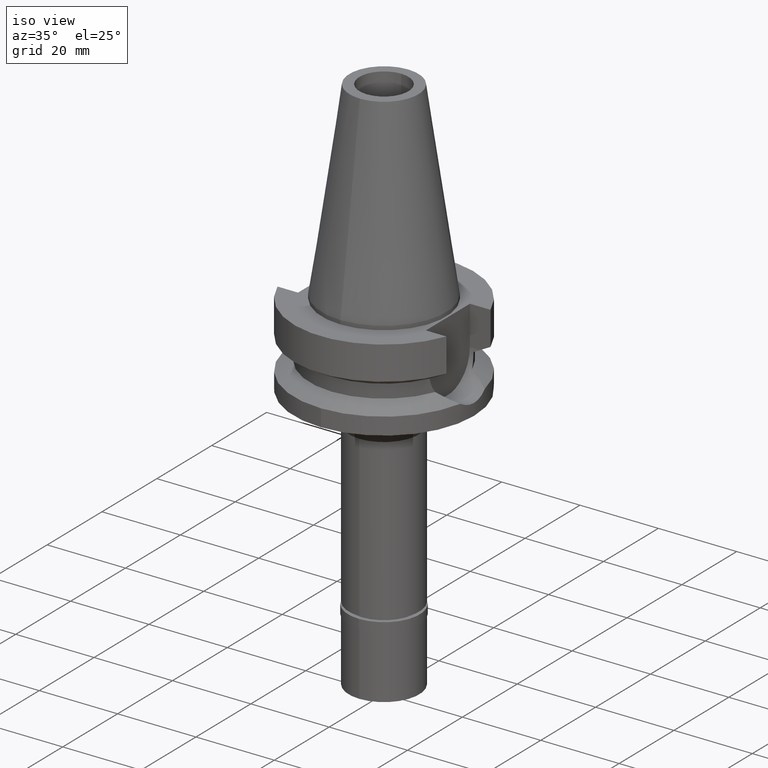
[diagram: clean part render]
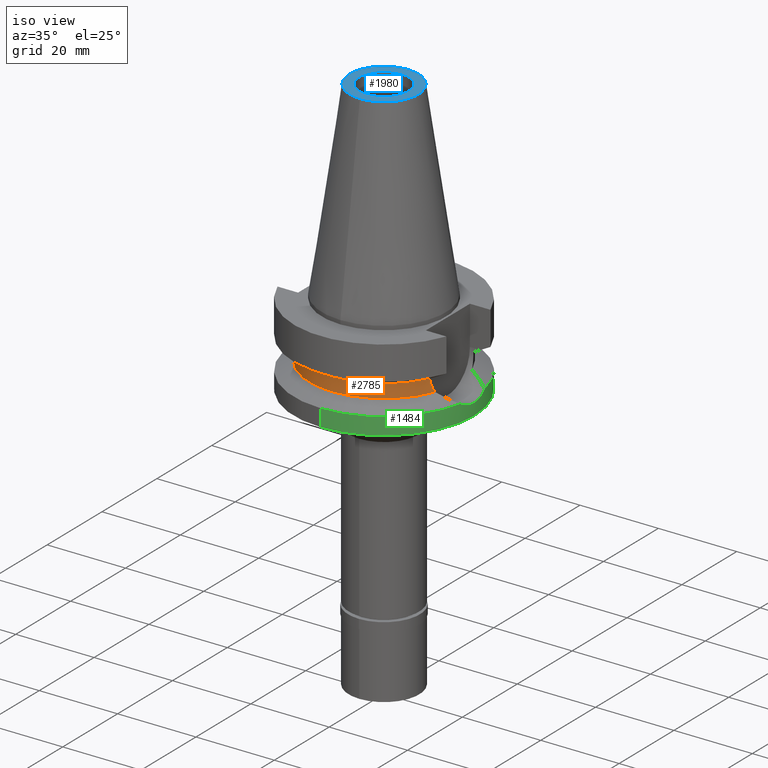
[diagram: same view with three faces highlighted in distinct colors, each labeled with its STEP entity id]
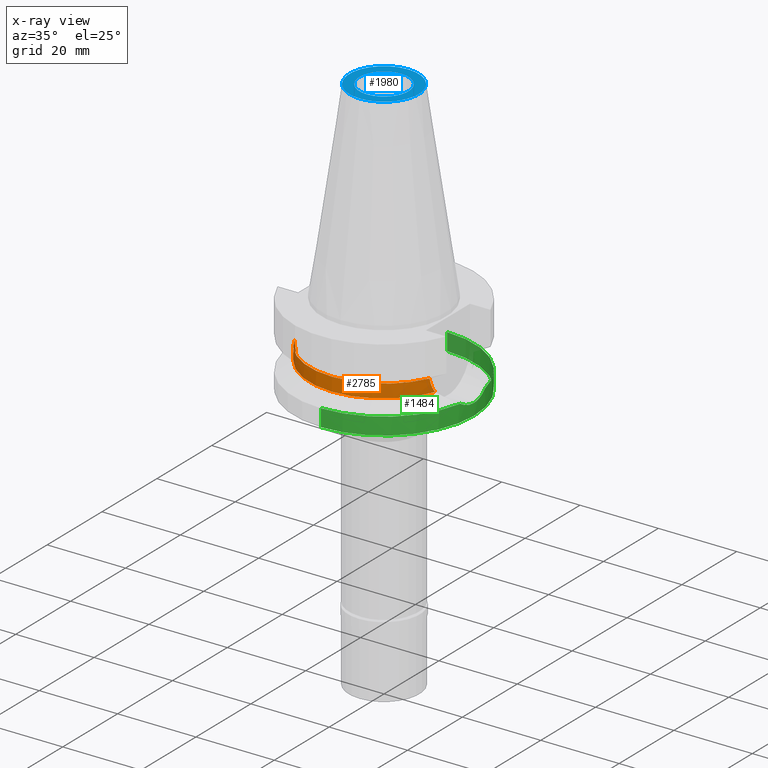
[diagram: x-ray of the same camera — body ghosted, the three highlighted faces saturated]
A machine part, iso view with three faces highlighted in distinct colors.
The next image is the same camera in x-ray (body ghosted, the three faces saturated) — at least one of them is partly hidden behind the body in this view.
Their STEP definitions:

[orange] entity #2785 — the highlighted cylindrical surface (partial cylindrical patch) has radius 19.0018 mm, axis along (0, 0, -1).
#17 = VERTEX_POINT ( 'NONE', #1783 ) ;
#24 = CARTESIAN_POINT ( 'NONE',  ( -17.26825608798807110, -7.929744833635926859, -12.45263463295230189 ) ) ;
#35 = CARTESIAN_POINT ( 'NONE',  ( 17.33949830114529433, -7.772922946167431846, -13.04957045330956156 ) ) ;
#82 = CARTESIAN_POINT ( 'NONE',  ( 17.50281428987996435, -7.400176627240894867, -14.16641912268912762 ) ) ;
#88 = CARTESIAN_POINT ( 'NONE',  ( -17.51269496040693951, -7.374794055766867196, -14.18057197121118129 ) ) ;
#156 = CARTESIAN_POINT ( 'NONE',  ( -17.45916774024316354, -7.500111073790702854, -13.87569767890726347 ) ) ;
#159 = CARTESIAN_POINT ( 'NONE',  ( 17.75928303705000033, -6.758398853744999712, -15.32339055352999857 ) ) ;
#222 = B_SPLINE_CURVE_WITH_KNOTS ( 'NONE', 3,
 ( #2403, #1944, #2428, #247, #88, #1270, #156, #810, #1700, #1286, #1938, #2651, #1372, #24, #897 ),
 .UNSPECIFIED., .F., .F.,
 ( 4, 2, 2, 1, 1, 1, 2, 2, 4 ),
 ( 0.0000000000000000000, 0.2500000000000176525, 0.3750000000000257017, 0.4375000000000299760, 0.4687500000000319744, 0.4843750000000328626, 0.4921875000000328071, 0.5000000000000327516, 1.000000000000000000 ),
 .UNSPECIFIED. ) ;
#247 = CARTESIAN_POINT ( 'NONE',  ( -17.53880179780772153, -7.312723605806137783, -14.31912348460849493 ) ) ;
#267 = CARTESIAN_POINT ( 'NONE',  ( 17.40246475582207708, -7.630563837976088060, -13.51509474752734974 ) ) ;
#292 = CARTESIAN_POINT ( 'NONE',  ( 17.38352545387158088, -7.673723835462215703, -13.38458801244068752 ) ) ;
#312 = VERTEX_POINT ( 'NONE', #159 ) ;
#326 = CARTESIAN_POINT ( 'NONE',  ( 0.0000000000000000000, 1.093341284896999988E-14, -11.87660944646999894 ) ) ;
#513 = B_SPLINE_CURVE_WITH_KNOTS ( 'NONE', 3,
 ( #2269, #1395, #909, #1417, #35, #2294, #292, #267, #952, #2087, #2729, #2078, #82, #1139, #1849 ),
 .UNSPECIFIED., .F., .F.,
 ( 4, 2, 2, 1, 1, 1, 2, 2, 4 ),
 ( 0.0000000000000000000, 0.2499999999999925615, 0.3749999999999881761, 0.4374999999999854561, 0.4687499999999841793, 0.4843749999999832911, 0.4921874999999835132, 0.4999999999999837352, 1.000000000000000000 ),
 .UNSPECIFIED. ) ;
#534 = EDGE_LOOP ( 'NONE', ( #2016, #1729, #2765, #2355 ) ) ;
#546 = CARTESIAN_POINT ( 'NONE',  ( 0.0000000000000000000, 1.899304720797999717E-14, 55.09000000000000341 ) ) ;
#601 = EDGE_CURVE ( 'NONE', #17, #312, #1969, .T. ) ;
#629 = AXIS2_PLACEMENT_3D ( 'NONE', #546, #772, #1258 ) ;
#637 = CARTESIAN_POINT ( 'NONE',  ( 17.23728651733000206, -7.996501750019998411, -11.87660739320999959 ) ) ;
#702 = AXIS2_PLACEMENT_3D ( 'NONE', #1435, #760, #1929 ) ;
#760 = DIRECTION ( 'NONE',  ( 0.0000000000000000000, 0.0000000000000000000, 1.000000000000000000 ) ) ;
#761 = DIRECTION ( 'NONE',  ( 0.0000000000000000000, 0.0000000000000000000, -1.000000000000000000 ) ) ;
#772 = DIRECTION ( 'NONE',  ( 0.0000000000000000000, 0.0000000000000000000, -1.000000000000000000 ) ) ;
#810 = CARTESIAN_POINT ( 'NONE',  ( -17.44023413050847182, -7.543863766573640994, -13.75976389724798743 ) ) ;
#897 = CARTESIAN_POINT ( 'NONE',  ( -17.23729139295999957, -7.996491146611000467, -11.87660607773000088 ) ) ;
#909 = CARTESIAN_POINT ( 'NONE',  ( 17.27592865075187234, -7.913379398881408733, -12.45762904854303521 ) ) ;
#952 = CARTESIAN_POINT ( 'NONE',  ( 17.41224899685526850, -7.608177767614096254, -13.58036371506877948 ) ) ;
#995 = EDGE_CURVE ( 'NONE', #2391, #312, #513, .T. ) ;
#1002 = FACE_OUTER_BOUND ( 'NONE', #534, .T. ) ;
#1122 = EDGE_CURVE ( 'NONE', #17, #1846, #222, .T. ) ;
#1139 = CARTESIAN_POINT ( 'NONE',  ( 17.61516098069872527, -7.137113464379599037, -14.73814568251177803 ) ) ;
#1160 = AXIS2_PLACEMENT_3D ( 'NONE', #326, #761, #1897 ) ;
#1258 = DIRECTION ( 'NONE',  ( 0.0000000000000000000, -1.000000000000000000, 0.0000000000000000000 ) ) ;
#1270 = CARTESIAN_POINT ( 'NONE',  ( -17.47651365515604382, -7.459704488211568396, -13.97666972183840350 ) ) ;
#1286 = CARTESIAN_POINT ( 'NONE',  ( -17.42724540378602427, -7.573766977290222080, -13.67775164290351420 ) ) ;
#1372 = CARTESIAN_POINT ( 'NONE',  ( -17.32988208414754894, -7.797407153364577681, -13.04852562439563890 ) ) ;
#1395 = CARTESIAN_POINT ( 'NONE',  ( 17.25277258142993375, -7.963111049225214622, -12.16468846146518423 ) ) ;
#1417 = CARTESIAN_POINT ( 'NONE',  ( 17.32216776256780832, -7.811451360816643152, -12.90108491672162572 ) ) ;
#1435 = CARTESIAN_POINT ( 'NONE',  ( 0.0000000000000000000, 1.022848384030000006E-14, -15.32339055352999857 ) ) ;
#1700 = CARTESIAN_POINT ( 'NONE',  ( -17.43109314839036372, -7.564917561253388989, -13.70228136683628151 ) ) ;
#1729 = ORIENTED_EDGE ( 'NONE', *, *, #601, .T. ) ;
#1783 = CARTESIAN_POINT ( 'NONE',  ( -17.75928303705000033, -6.758398853744999712, -15.32339055352999857 ) ) ;
#1846 = VERTEX_POINT ( 'NONE', #2607 ) ;
#1849 = CARTESIAN_POINT ( 'NONE',  ( 17.75928303705000033, -6.758398853744999712, -15.32339055352999857 ) ) ;
#1897 = DIRECTION ( 'NONE',  ( 0.0000000000000000000, -1.000000000000000000, 0.0000000000000000000 ) ) ;
#1929 = DIRECTION ( 'NONE',  ( 0.0000000000000000000, -1.000000000000000000, 0.0000000000000000000 ) ) ;
#1938 = CARTESIAN_POINT ( 'NONE',  ( -17.42469575608546606, -7.579628292599207562, -13.66142217252943247 ) ) ;
#1944 = CARTESIAN_POINT ( 'NONE',  ( -17.68720968991326004, -6.947788530045807320, -15.03071809367088107 ) ) ;
#1969 = CIRCLE ( 'NONE', #702, 19.00179173279000011 ) ;
#2016 = ORIENTED_EDGE ( 'NONE', *, *, #1122, .F. ) ;
#2078 = CARTESIAN_POINT ( 'NONE',  ( 17.42098403763615622, -7.588143148054242282, -13.63750035187326226 ) ) ;
#2087 = CARTESIAN_POINT ( 'NONE',  ( 17.41650965516762639, -7.598410173944073698, -13.60833792212287463 ) ) ;
#2269 = CARTESIAN_POINT ( 'NONE',  ( 17.23728651733000206, -7.996501750019998411, -11.87660739320999959 ) ) ;
#2294 = CARTESIAN_POINT ( 'NONE',  ( 17.36837036096977371, -7.707981440698651987, -13.27282778391163554 ) ) ;
#2355 = ORIENTED_EDGE ( 'NONE', *, *, #2702, .T. ) ;
#2391 = VERTEX_POINT ( 'NONE', #637 ) ;
#2403 = CARTESIAN_POINT ( 'NONE',  ( -17.75928303705000033, -6.758398853744999712, -15.32339055352999857 ) ) ;
#2408 = CIRCLE ( 'NONE', #1160, 19.00179173279000011 ) ;
#2428 = CARTESIAN_POINT ( 'NONE',  ( -17.62308021171061156, -7.108328008165120337, -14.74102245919955223 ) ) ;
#2607 = CARTESIAN_POINT ( 'NONE',  ( -17.23729139295999957, -7.996491146611000467, -11.87660607773000088 ) ) ;
#2651 = CARTESIAN_POINT ( 'NONE',  ( -17.42361137045860175, -7.582120203356798704, -13.65445023804092983 ) ) ;
#2702 = EDGE_CURVE ( 'NONE', #2391, #1846, #2408, .T. ) ;
#2729 = CARTESIAN_POINT ( 'NONE',  ( 17.41936507452147964, -7.591859783510200188, -13.62698761805387626 ) ) ;
#2741 = CYLINDRICAL_SURFACE ( 'NONE', #629, 19.00179173279000011 ) ;
#2765 = ORIENTED_EDGE ( 'NONE', *, *, #995, .F. ) ;
#2785 = ADVANCED_FACE ( 'NONE', ( #1002 ), #2741, .T. ) ;

[blue] entity #1980 — the highlighted planar face has unit normal (0, 0, -1).
#32 = DIRECTION ( 'NONE',  ( 0.0000000000000000000, 0.0000000000000000000, 1.000000000000000000 ) ) ;
#145 = VERTEX_POINT ( 'NONE', #2000 ) ;
#160 = DIRECTION ( 'NONE',  ( 0.0000000000000000000, -1.000000000000000000, 0.0000000000000000000 ) ) ;
#303 = ORIENTED_EDGE ( 'NONE', *, *, #308, .F. ) ;
#308 = EDGE_CURVE ( 'NONE', #1524, #2768, #2254, .T. ) ;
#407 = DIRECTION ( 'NONE',  ( 0.0000000000000000000, 0.0000000000000000000, 1.000000000000000000 ) ) ;
#416 = EDGE_CURVE ( 'NONE', #145, #2819, #1233, .T. ) ;
#460 = CARTESIAN_POINT ( 'NONE',  ( 0.0000000000000000000, 1.521011324540999938E-14, 48.39999999999999858 ) ) ;
#462 = AXIS2_PLACEMENT_3D ( 'NONE', #861, #2643, #598 ) ;
#556 = CARTESIAN_POINT ( 'NONE',  ( 0.0000000000000000000, 6.250000000000000000, 48.39999999999999858 ) ) ;
#598 = DIRECTION ( 'NONE',  ( 0.0000000000000000000, 1.000000000000000000, 0.0000000000000000000 ) ) ;
#649 = AXIS2_PLACEMENT_3D ( 'NONE', #2029, #32, #905 ) ;
#700 = DIRECTION ( 'NONE',  ( 0.0000000000000000000, 0.0000000000000000000, -1.000000000000000000 ) ) ;
#732 = AXIS2_PLACEMENT_3D ( 'NONE', #460, #700, #1163 ) ;
#861 = CARTESIAN_POINT ( 'NONE',  ( 0.0000000000000000000, 1.521011324540999938E-14, 48.39999999999999858 ) ) ;
#905 = DIRECTION ( 'NONE',  ( 0.0000000000000000000, -1.000000000000000000, 0.0000000000000000000 ) ) ;
#1036 = ORIENTED_EDGE ( 'NONE', *, *, #2105, .F. ) ;
#1163 = DIRECTION ( 'NONE',  ( 0.0000000000000000000, -1.000000000000000000, 0.0000000000000000000 ) ) ;
#1233 = CIRCLE ( 'NONE', #462, 8.816791732783000768 ) ;
#1249 = FACE_BOUND ( 'NONE', #2350, .T. ) ;
#1260 = DIRECTION ( 'NONE',  ( 0.0000000000000000000, 0.0000000000000000000, -1.000000000000000000 ) ) ;
#1264 = CIRCLE ( 'NONE', #2862, 6.250000000000000000 ) ;
#1524 = VERTEX_POINT ( 'NONE', #2804 ) ;
#1945 = PLANE ( 'NONE',  #2736 ) ;
#1980 = ADVANCED_FACE ( 'NONE', ( #2587, #1249 ), #1945, .F. ) ;
#2000 = CARTESIAN_POINT ( 'NONE',  ( 0.0000000000000000000, 8.816791732783000768, 48.39999999999999858 ) ) ;
#2029 = CARTESIAN_POINT ( 'NONE',  ( 0.0000000000000000000, 1.899304720797999717E-14, 48.39999999999999858 ) ) ;
#2105 = EDGE_CURVE ( 'NONE', #2819, #145, #2469, .T. ) ;
#2254 = CIRCLE ( 'NONE', #649, 6.250000000000000000 ) ;
#2326 = CARTESIAN_POINT ( 'NONE',  ( 0.0000000000000000000, 1.817375849934999910E-14, 48.39999999999999858 ) ) ;
#2350 = EDGE_LOOP ( 'NONE', ( #2388, #303 ) ) ;
#2388 = ORIENTED_EDGE ( 'NONE', *, *, #2851, .F. ) ;
#2402 = CARTESIAN_POINT ( 'NONE',  ( 0.0000000000000000000, 1.899304720797999717E-14, 48.39999999999999858 ) ) ;
#2464 = EDGE_LOOP ( 'NONE', ( #2636, #1036 ) ) ;
#2469 = CIRCLE ( 'NONE', #732, 8.816791732783000768 ) ;
#2587 = FACE_OUTER_BOUND ( 'NONE', #2464, .T. ) ;
#2636 = ORIENTED_EDGE ( 'NONE', *, *, #416, .F. ) ;
#2643 = DIRECTION ( 'NONE',  ( 0.0000000000000000000, 0.0000000000000000000, -1.000000000000000000 ) ) ;
#2736 = AXIS2_PLACEMENT_3D ( 'NONE', #2326, #1260, #160 ) ;
#2768 = VERTEX_POINT ( 'NONE', #556 ) ;
#2781 = CARTESIAN_POINT ( 'NONE',  ( 0.0000000000000000000, -8.816791732783000768, 48.39999999999999858 ) ) ;
#2804 = CARTESIAN_POINT ( 'NONE',  ( 0.0000000000000000000, -6.250000000000000000, 48.39999999999999858 ) ) ;
#2819 = VERTEX_POINT ( 'NONE', #2781 ) ;
#2827 = DIRECTION ( 'NONE',  ( 0.0000000000000000000, 1.000000000000000000, 0.0000000000000000000 ) ) ;
#2851 = EDGE_CURVE ( 'NONE', #2768, #1524, #1264, .T. ) ;
#2862 = AXIS2_PLACEMENT_3D ( 'NONE', #2402, #407, #2827 ) ;

[green] entity #1484 — the highlighted cylindrical surface (partial cylindrical patch) has radius 23.0018 mm, axis along (0, 0, -1).
#14 = ORIENTED_EDGE ( 'NONE', *, *, #181, .F. ) ;
#36 = CARTESIAN_POINT ( 'NONE',  ( 22.80244967509570131, -3.023463627936797682, -18.41303914263190578 ) ) ;
#57 = CARTESIAN_POINT ( 'NONE',  ( 22.83570449082564835, -2.758039603138094709, -18.51337649043071920 ) ) ;
#72 = EDGE_CURVE ( 'NONE', #602, #903, #2850, .T. ) ;
#181 = EDGE_CURVE ( 'NONE', #1381, #1583, #2856, .T. ) ;
#204 = EDGE_CURVE ( 'NONE', #903, #959, #2367, .T. ) ;
#216 = LINE ( 'NONE', #1557, #2523 ) ;
#226 = CARTESIAN_POINT ( 'NONE',  ( 0.0000000000000000000, 1.022848384030000006E-14, -17.63279163029000074 ) ) ;
#241 = DIRECTION ( 'NONE',  ( 0.0000000000000000000, 1.000000000000000000, 0.0000000000000000000 ) ) ;
#253 = CARTESIAN_POINT ( 'NONE',  ( 22.63309688569851019, -4.119088057872703601, -17.88059669462854728 ) ) ;
#274 = CARTESIAN_POINT ( 'NONE',  ( 22.88872954629784573, 2.276464386680930652, -18.67142274344720576 ) ) ;
#289 = CARTESIAN_POINT ( 'NONE',  ( 22.89232841905351279, 2.240154369950679847, -18.68209685462999303 ) ) ;
#332 = EDGE_CURVE ( 'NONE', #2217, #1583, #1422, .T. ) ;
#366 = EDGE_CURVE ( 'NONE', #1921, #2217, #216, .T. ) ;
#370 = FACE_OUTER_BOUND ( 'NONE', #1347, .T. ) ;
#387 = DIRECTION ( 'NONE',  ( 0.0000000000000000000, -1.000000000000000000, 0.0000000000000000000 ) ) ;
#476 = CARTESIAN_POINT ( 'NONE',  ( 22.95019829296470704, 1.547805031589670088, -18.85231163677935484 ) ) ;
#511 = AXIS2_PLACEMENT_3D ( 'NONE', #1525, #1962, #2219 ) ;
#602 = VERTEX_POINT ( 'NONE', #2758 ) ;
#688 = DIRECTION ( 'NONE',  ( 0.0000000000000000000, -2.440492903962000069E-14, -1.000000000000000000 ) ) ;
#704 = CARTESIAN_POINT ( 'NONE',  ( 23.00179173279000011, 0.0000000000000000000, -19.00000000000000000 ) ) ;
#714 = CARTESIAN_POINT ( 'NONE',  ( 22.81456907947576340, 3.007049171391769526, -18.45119275453219387 ) ) ;
#754 = CARTESIAN_POINT ( 'NONE',  ( 22.88263404868033746, -2.336961737117329907, -18.65332846177260251 ) ) ;
#890 = DIRECTION ( 'NONE',  ( 0.9807796963072338281, -0.1951183930630069618, 0.0000000000000000000 ) ) ;
#892 = ORIENTED_EDGE ( 'NONE', *, *, #332, .T. ) ;
#903 = VERTEX_POINT ( 'NONE', #704 ) ;
#923 = CARTESIAN_POINT ( 'NONE',  ( 22.99196441091851284, 0.7694926620872694079, -18.97277314803364590 ) ) ;
#938 = CARTESIAN_POINT ( 'NONE',  ( 22.88631110380603673, 2.300664619856132020, -18.66424666404909161 ) ) ;
#959 = VERTEX_POINT ( 'NONE', #1156 ) ;
#980 = CARTESIAN_POINT ( 'NONE',  ( 22.92808681875386156, 1.839701739974634043, -18.78759720278367595 ) ) ;
#996 = CARTESIAN_POINT ( 'NONE',  ( 22.96248198133113760, -1.550910468359041117, -18.89044686476619361 ) ) ;
#1040 = CYLINDRICAL_SURFACE ( 'NONE', #2137, 23.00179173279000011 ) ;
#1137 = CARTESIAN_POINT ( 'NONE',  ( 0.0000000000000000000, 23.00179173279000011, -17.63279163029000074 ) ) ;
#1140 = CARTESIAN_POINT ( 'NONE',  ( 22.69681452079304407, -3.748130292585473811, -18.08542765989304968 ) ) ;
#1156 = CARTESIAN_POINT ( 'NONE',  ( 22.55969031021000148, 4.488072640469000341, -17.63279163029000074 ) ) ;
#1159 = CIRCLE ( 'NONE', #2090, 23.00179173279000366 ) ;
#1161 = EDGE_CURVE ( 'NONE', #602, #1921, #1159, .T. ) ;
#1184 = CARTESIAN_POINT ( 'NONE',  ( 0.0000000000000000000, -23.00179173279000011, -17.63279163029000074 ) ) ;
#1186 = CARTESIAN_POINT ( 'NONE',  ( 22.91610977022298101, 1.985559376031936107, -18.75241625045576654 ) ) ;
#1347 = EDGE_LOOP ( 'NONE', ( #2301, #2517, #892, #14, #1662, #2845, #2343 ) ) ;
#1381 = VERTEX_POINT ( 'NONE', #2818 ) ;
#1394 = CARTESIAN_POINT ( 'NONE',  ( 22.90052425194243213, 2.155366592265409942, -18.70637377856149186 ) ) ;
#1422 = CIRCLE ( 'NONE', #511, 23.00179173279000011 ) ;
#1429 = CARTESIAN_POINT ( 'NONE',  ( 22.88168734068804255, -2.346202258184302725, -18.65051685906338008 ) ) ;
#1442 = CARTESIAN_POINT ( 'NONE',  ( 23.00179173279000011, 0.0000000000000000000, -19.00000000000000000 ) ) ;
#1468 = EDGE_CURVE ( 'NONE', #1381, #959, #1490, .T. ) ;
#1484 = ADVANCED_FACE ( 'NONE', ( #370 ), #1040, .T. ) ;
#1490 = CIRCLE ( 'NONE', #2410, 23.00179173279000011 ) ;
#1522 = CARTESIAN_POINT ( 'NONE',  ( 0.0000000000000000000, -23.00179173279000011, -22.00000000000000000 ) ) ;
#1525 = CARTESIAN_POINT ( 'NONE',  ( 0.0000000000000000000, 1.899304720797999717E-14, -22.00000000000000000 ) ) ;
#1557 = CARTESIAN_POINT ( 'NONE',  ( 0.0000000000000000000, -23.00179173279000011, -17.63279163029000074 ) ) ;
#1577 = CARTESIAN_POINT ( 'NONE',  ( 22.55969031021000148, -4.488072640469000341, -17.63279163029000074 ) ) ;
#1583 = VERTEX_POINT ( 'NONE', #2100 ) ;
#1590 = CARTESIAN_POINT ( 'NONE',  ( 23.00179173279000011, 0.0000000000000000000, -19.00000000000000000 ) ) ;
#1594 = CARTESIAN_POINT ( 'NONE',  ( 22.86817288339884158, -2.474876005755082264, -18.61035641283195474 ) ) ;
#1635 = CARTESIAN_POINT ( 'NONE',  ( 22.55969031021000148, 4.488072640469000341, -17.63279163029000074 ) ) ;
#1640 = DIRECTION ( 'NONE',  ( 0.0000000000000000000, 0.0000000000000000000, -1.000000000000000000 ) ) ;
#1651 = CARTESIAN_POINT ( 'NONE',  ( 23.00179173279000366, -0.7639037582781772473, -19.00000000000000711 ) ) ;
#1662 = ORIENTED_EDGE ( 'NONE', *, *, #1468, .T. ) ;
#1678 = VECTOR ( 'NONE', #688, 1000.000000000000000 ) ;
#1794 = CARTESIAN_POINT ( 'NONE',  ( 0.0000000000000000000, 1.022848384030000006E-14, -17.63279163029000074 ) ) ;
#1806 = CARTESIAN_POINT ( 'NONE',  ( 22.85142356052869417, -2.626377786666608927, -18.56047523571150037 ) ) ;
#1825 = DIRECTION ( 'NONE',  ( 0.0000000000000000000, 0.0000000000000000000, -1.000000000000000000 ) ) ;
#1835 = CARTESIAN_POINT ( 'NONE',  ( 22.88494660143931014, 2.314195746949325727, -18.66019597702564425 ) ) ;
#1921 = VERTEX_POINT ( 'NONE', #1184 ) ;
#1962 = DIRECTION ( 'NONE',  ( 0.0000000000000000000, 0.0000000000000000000, 1.000000000000000000 ) ) ;
#1972 = DIRECTION ( 'NONE',  ( 0.0000000000000000000, 0.0000000000000000000, -1.000000000000000000 ) ) ;
#2044 = CARTESIAN_POINT ( 'NONE',  ( 23.00179173278999656, 0.3819333259492371790, -19.00000000000000355 ) ) ;
#2076 = CARTESIAN_POINT ( 'NONE',  ( 22.70651122610169992, 3.750064444311779877, -18.12842797163603947 ) ) ;
#2090 = AXIS2_PLACEMENT_3D ( 'NONE', #226, #1825, #890 ) ;
#2100 = CARTESIAN_POINT ( 'NONE',  ( 0.0000000000000000000, 23.00179173279000011, -22.00000000000000000 ) ) ;
#2137 = AXIS2_PLACEMENT_3D ( 'NONE', #2385, #1972, #387 ) ;
#2217 = VERTEX_POINT ( 'NONE', #1522 ) ;
#2219 = DIRECTION ( 'NONE',  ( 0.0000000000000000000, -1.000000000000000000, 0.0000000000000000000 ) ) ;
#2301 = ORIENTED_EDGE ( 'NONE', *, *, #1161, .T. ) ;
#2343 = ORIENTED_EDGE ( 'NONE', *, *, #72, .F. ) ;
#2367 = B_SPLINE_CURVE_WITH_KNOTS ( 'NONE', 3,
 ( #1590, #2044, #923, #2697, #476, #980, #1186, #1394, #289, #274, #938, #1835, #714, #2076, #1635 ),
 .UNSPECIFIED., .F., .F.,
 ( 4, 2, 2, 1, 1, 1, 2, 2, 4 ),
 ( 0.0000000000000000000, 0.2500000000000037748, 0.3750000000000056066, 0.4375000000000063838, 0.4687500000000068279, 0.4843750000000069944, 0.4921875000000071609, 0.5000000000000073275, 1.000000000000000000 ),
 .UNSPECIFIED. ) ;
#2385 = CARTESIAN_POINT ( 'NONE',  ( 0.0000000000000000000, 1.899304720797999717E-14, 55.09000000000000341 ) ) ;
#2389 = DIRECTION ( 'NONE',  ( 0.0000000000000000000, 2.359143140496999862E-14, -1.000000000000000000 ) ) ;
#2410 = AXIS2_PLACEMENT_3D ( 'NONE', #1794, #1640, #241 ) ;
#2485 = CARTESIAN_POINT ( 'NONE',  ( 22.77785756284389507, -3.203224358243247138, -18.33795850392366944 ) ) ;
#2517 = ORIENTED_EDGE ( 'NONE', *, *, #366, .T. ) ;
#2523 = VECTOR ( 'NONE', #2389, 1000.000000000000000 ) ;
#2680 = CARTESIAN_POINT ( 'NONE',  ( 22.87615014688809723, -2.399681296233152850, -18.63406858306812808 ) ) ;
#2697 = CARTESIAN_POINT ( 'NONE',  ( 22.96248244530405813, 1.352967724080506917, -18.88792197763687142 ) ) ;
#2703 = CARTESIAN_POINT ( 'NONE',  ( 22.87948381739507653, -2.367577351629111426, -18.64397182325755509 ) ) ;
#2758 = CARTESIAN_POINT ( 'NONE',  ( 22.55969031021000148, -4.488072640469000341, -17.63279163029000074 ) ) ;
#2818 = CARTESIAN_POINT ( 'NONE',  ( 0.0000000000000000000, 23.00179173279000011, -17.63279163029000074 ) ) ;
#2845 = ORIENTED_EDGE ( 'NONE', *, *, #204, .F. ) ;
#2850 = B_SPLINE_CURVE_WITH_KNOTS ( 'NONE', 3,
 ( #1577, #253, #1140, #2485, #36, #57, #1806, #1594, #2680, #2703, #1429, #754, #996, #1651, #1442 ),
 .UNSPECIFIED., .F., .F.,
 ( 4, 2, 2, 1, 1, 1, 2, 2, 4 ),
 ( 0.0000000000000000000, 0.2499999999999892863, 0.3749999999999839018, 0.4374999999999812372, 0.4687499999999799050, 0.4843749999999792388, 0.4921874999999794054, 0.4999999999999795719, 1.000000000000000000 ),
 .UNSPECIFIED. ) ;
#2856 = LINE ( 'NONE', #1137, #1678 ) ;